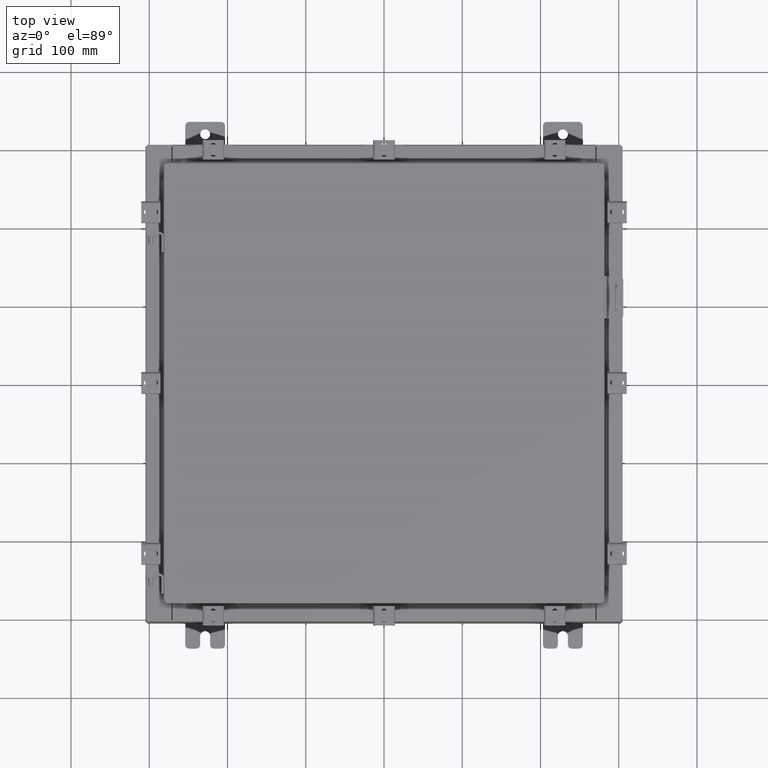
[diagram: clean part render]
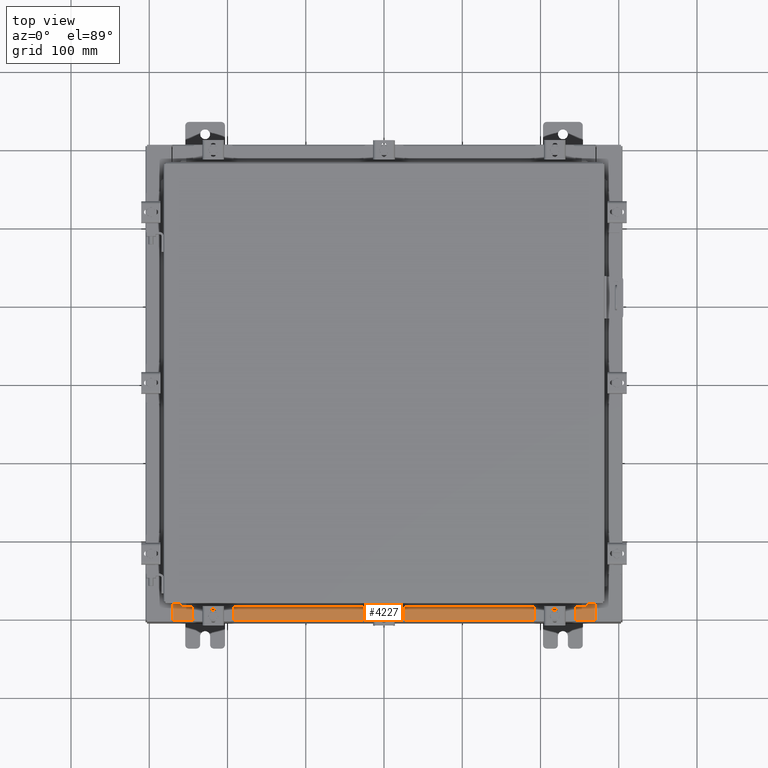
[diagram: same view with one face highlighted and labeled with its STEP entity id]
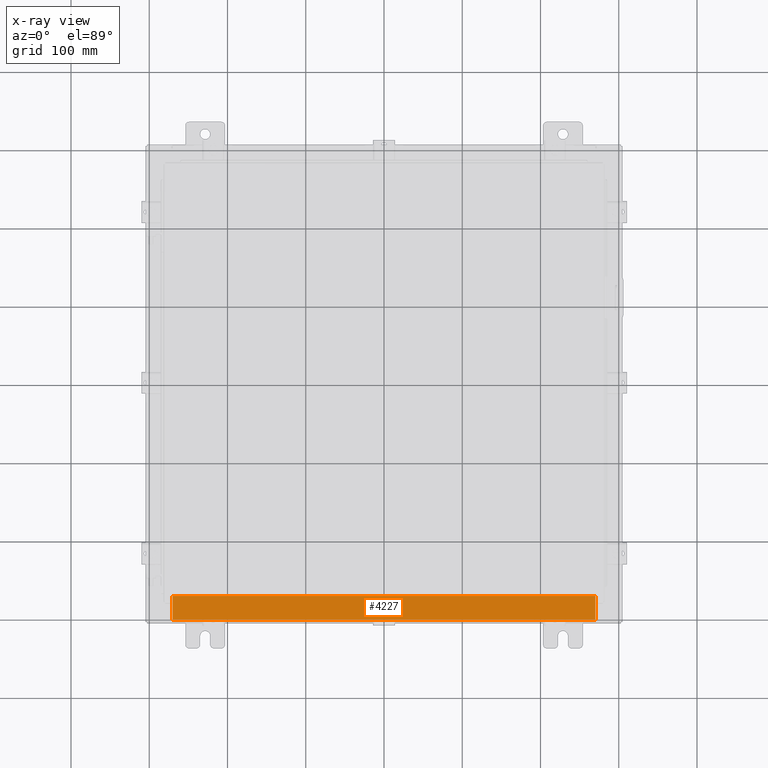
[diagram: x-ray of the same camera — body ghosted, the highlighted face saturated]
A machine part, top view. The second image highlights one B-rep face of the part: STEP entity #4227.
The next image is the same camera in x-ray: the body ghosted, the highlighted face saturated — about 0% of this face is hidden behind the body in this view.
In plain terms, the highlighted planar face has unit normal (-0, -0, 1).
Its self-contained STEP definition (entity closure, byte-faithful):
#492 = ORIENTED_EDGE ( 'NONE', *, *, #10998, .F. ) ;
#1415 = DIRECTION ( 'NONE',  ( 0.0000000000000000000, -1.000000000000000000, 3.566381192773190000E-015 ) ) ;
#1462 = EDGE_CURVE ( 'NONE', #21748, #6877, #18072, .T. ) ;
#2562 = VECTOR ( 'NONE', #6806, 39.37007874015748100 ) ;
#2671 = VECTOR ( 'NONE', #15446, 39.37007874015748100 ) ;
#2720 = DIRECTION ( 'NONE',  ( 0.0000000000000000000, 3.566381192773190000E-015, 1.000000000000000000 ) ) ;
#4227 = ADVANCED_FACE ( 'NONE', ( #7447 ), #8213, .T. ) ;
#4635 = LINE ( 'NONE', #19018, #8571 ) ;
#4776 = CARTESIAN_POINT ( 'NONE',  ( 0.0000000000000000000, 1.069354855923099900E-014, 3.000000000000000900 ) ) ;
#5351 = ORIENTED_EDGE ( 'NONE', *, *, #14483, .T. ) ;
#6806 = DIRECTION ( 'NONE',  ( -1.000000000000000000, 2.568202152506545800E-017, -9.159187855938968600E-032 ) ) ;
#6877 = VERTEX_POINT ( 'NONE', #8394 ) ;
#7447 = FACE_OUTER_BOUND ( 'NONE', #12790, .T. ) ;
#7570 = CARTESIAN_POINT ( 'NONE',  ( -10.63720000000000200, -1.287299999999999200, 3.000000000000005300 ) ) ;
#7585 = EDGE_CURVE ( 'NONE', #8165, #21748, #4635, .T. ) ;
#8165 = VERTEX_POINT ( 'NONE', #11887 ) ;
#8213 = PLANE ( 'NONE',  #14314 ) ;
#8394 = CARTESIAN_POINT ( 'NONE',  ( -10.63720000000000200, -0.08770000000000000000, 3.000000000000000900 ) ) ;
#8571 = VECTOR ( 'NONE', #10088, 39.37007874015748100 ) ;
#9410 = VERTEX_POINT ( 'NONE', #16411 ) ;
#9781 = DIRECTION ( 'NONE',  ( -0.0000000000000000000, 1.000000000000000000, -3.566381192773190000E-015 ) ) ;
#10088 = DIRECTION ( 'NONE',  ( -1.000000000000000000, 0.0000000000000000000, 0.0000000000000000000 ) ) ;
#10812 = LINE ( 'NONE', #18984, #2562 ) ;
#10998 = EDGE_CURVE ( 'NONE', #9410, #8165, #16039, .T. ) ;
#11887 = CARTESIAN_POINT ( 'NONE',  ( 10.63720000000000200, -1.287299999999999900, 3.000000000000005300 ) ) ;
#12790 = EDGE_LOOP ( 'NONE', ( #18897, #19324, #492, #5351 ) ) ;
#13461 = VECTOR ( 'NONE', #9781, 39.37007874015748100 ) ;
#13711 = CARTESIAN_POINT ( 'NONE',  ( 10.63720000000000200, -1.300299999999999800, 3.000000000000005300 ) ) ;
#13804 = CARTESIAN_POINT ( 'NONE',  ( -10.63720000000000200, -0.07469999999999973900, 3.000000000000000900 ) ) ;
#14314 = AXIS2_PLACEMENT_3D ( 'NONE', #4776, #2720, #1415 ) ;
#14483 = EDGE_CURVE ( 'NONE', #9410, #6877, #10812, .T. ) ;
#15446 = DIRECTION ( 'NONE',  ( -0.0000000000000000000, -1.000000000000000000, 3.566381192773190000E-015 ) ) ;
#16039 = LINE ( 'NONE', #13711, #2671 ) ;
#16411 = CARTESIAN_POINT ( 'NONE',  ( 10.63720000000000400, -0.08769999999999965300, 3.000000000000000900 ) ) ;
#18072 = LINE ( 'NONE', #13804, #13461 ) ;
#18897 = ORIENTED_EDGE ( 'NONE', *, *, #1462, .F. ) ;
#18984 = CARTESIAN_POINT ( 'NONE',  ( -2.252313287748515100E-018, -0.08770000000000000000, 3.000000000000001300 ) ) ;
#19018 = CARTESIAN_POINT ( 'NONE',  ( 10.63720000000000400, -1.287299999999999900, 3.000000000000005300 ) ) ;
#19324 = ORIENTED_EDGE ( 'NONE', *, *, #7585, .F. ) ;
#21748 = VERTEX_POINT ( 'NONE', #7570 ) ;